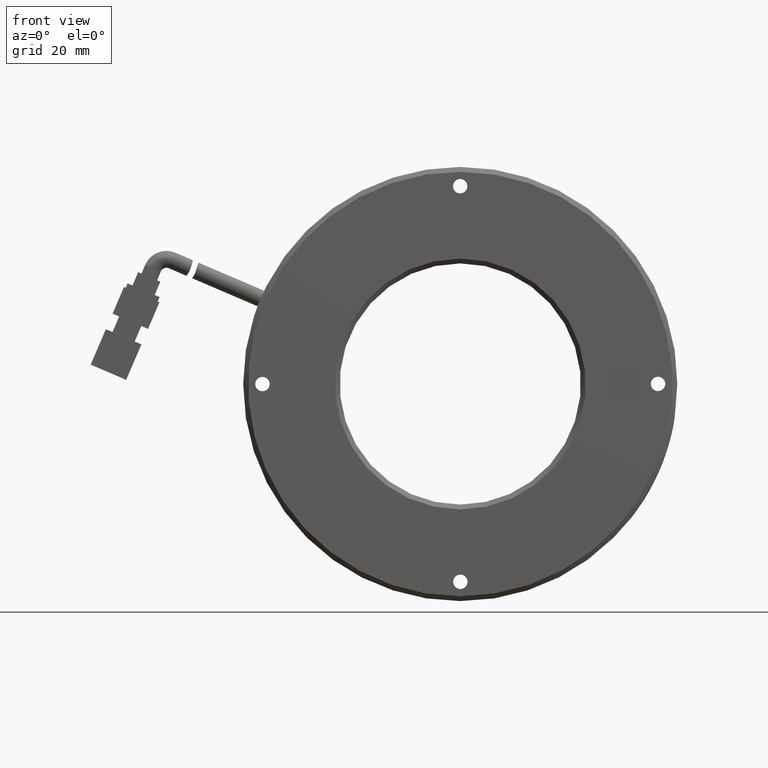
[diagram: clean part render]
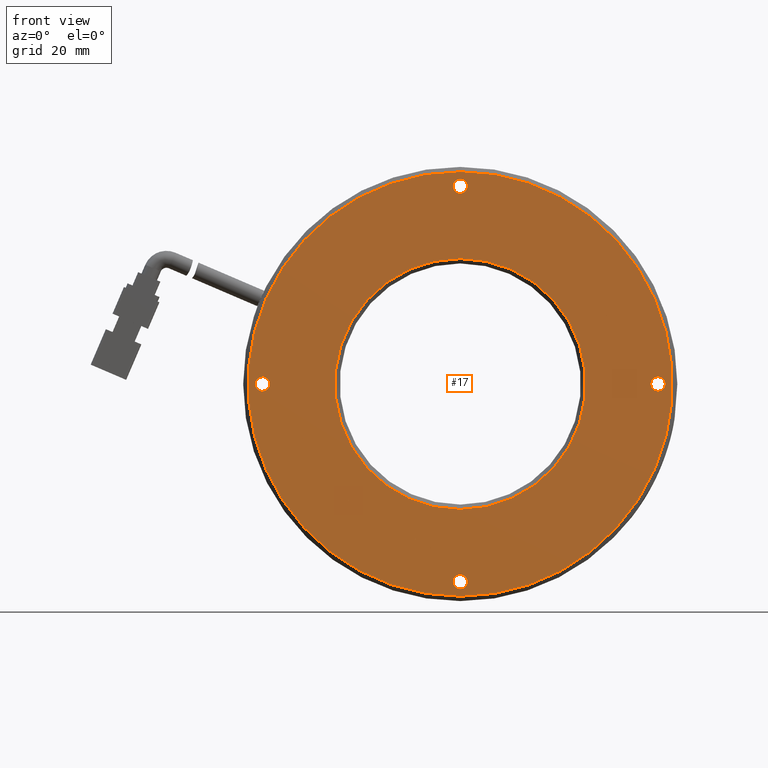
[diagram: same view with one face highlighted and labeled with its STEP entity id]
A machine part, front view. The second image highlights one B-rep face of the part: STEP entity #17.
In plain terms, the highlighted planar face has unit normal (0, 1, 0).
Its self-contained STEP definition (entity closure, byte-faithful):
#17 = ADVANCED_FACE ( 'NONE', ( #29082, #36484, #12332, #28107, #19718, #11350 ), #25307, .F. ) ;
#142 = CARTESIAN_POINT ( 'NONE',  ( -37.42857142857143800, -1.376447876447878900, -1.500000000000422800 ) ) ;
#380 = DIRECTION ( 'NONE',  ( 0.0000000000000000000, 0.0000000000000000000, 1.000000000000000000 ) ) ;
#1617 = EDGE_CURVE ( 'NONE', #20141, #33394, #23441, .T. ) ;
#1720 = EDGE_LOOP ( 'NONE', ( #29910, #34251 ) ) ;
#2146 = CARTESIAN_POINT ( 'NONE',  ( 3.571428571428565800, -1.376447876447878900, -39.50000000000000700 ) ) ;
#2369 = DIRECTION ( 'NONE',  ( 0.0000000000000000000, -1.000000000000000000, 0.0000000000000000000 ) ) ;
#3250 = CIRCLE ( 'NONE', #40471, 1.499999999999992700 ) ;
#4046 = AXIS2_PLACEMENT_3D ( 'NONE', #11362, #33414, #14530 ) ;
#5170 = DIRECTION ( 'NONE',  ( 0.0000000000000000000, 0.0000000000000000000, 1.000000000000000000 ) ) ;
#5369 = AXIS2_PLACEMENT_3D ( 'NONE', #8336, #5866, #5170 ) ;
#5775 = EDGE_CURVE ( 'NONE', #15281, #29503, #7669, .T. ) ;
#5866 = DIRECTION ( 'NONE',  ( -0.0000000000000000000, 1.000000000000000000, 0.0000000000000000000 ) ) ;
#6174 = VERTEX_POINT ( 'NONE', #2146 ) ;
#6738 = EDGE_LOOP ( 'NONE', ( #31327, #10570 ) ) ;
#7104 = AXIS2_PLACEMENT_3D ( 'NONE', #22276, #22150, #22018 ) ;
#7241 = CARTESIAN_POINT ( 'NONE',  ( 44.57142857142857700, -1.376447876447878900, 1.457167719820518000E-013 ) ) ;
#7288 = CIRCLE ( 'NONE', #9019, 44.00000000000000000 ) ;
#7498 = AXIS2_PLACEMENT_3D ( 'NONE', #21226, #2369, #24425 ) ;
#7499 = VERTEX_POINT ( 'NONE', #29788 ) ;
#7669 = CIRCLE ( 'NONE', #38198, 1.499999999999992700 ) ;
#7960 = ORIENTED_EDGE ( 'NONE', *, *, #25396, .F. ) ;
#8296 = AXIS2_PLACEMENT_3D ( 'NONE', #16094, #38141, #19295 ) ;
#8336 = CARTESIAN_POINT ( 'NONE',  ( 3.571428571428565800, -1.376447876447878900, 0.0000000000000000000 ) ) ;
#9019 = AXIS2_PLACEMENT_3D ( 'NONE', #28086, #9224, #31262 ) ;
#9104 = DIRECTION ( 'NONE',  ( 0.0000000000000000000, 0.0000000000000000000, 1.000000000000000000 ) ) ;
#9153 = DIRECTION ( 'NONE',  ( 0.0000000000000000000, -1.000000000000000000, 0.0000000000000000000 ) ) ;
#9183 = EDGE_LOOP ( 'NONE', ( #17519, #7960 ) ) ;
#9224 = DIRECTION ( 'NONE',  ( -0.0000000000000000000, 1.000000000000000000, 0.0000000000000000000 ) ) ;
#9864 = DIRECTION ( 'NONE',  ( 0.0000000000000000000, -1.000000000000000000, 0.0000000000000000000 ) ) ;
#9950 = VERTEX_POINT ( 'NONE', #10733 ) ;
#10393 = DIRECTION ( 'NONE',  ( 0.0000000000000000000, 0.0000000000000000000, 1.000000000000000000 ) ) ;
#10570 = ORIENTED_EDGE ( 'NONE', *, *, #35869, .F. ) ;
#10733 = CARTESIAN_POINT ( 'NONE',  ( 3.571428571428565800, -1.376447876447878900, -42.49999999999999300 ) ) ;
#10871 = CIRCLE ( 'NONE', #8296, 1.499999999999994400 ) ;
#11350 = FACE_BOUND ( 'NONE', #1720, .T. ) ;
#11362 = CARTESIAN_POINT ( 'NONE',  ( 3.571428571428565800, -1.376447876447878900, 0.0000000000000000000 ) ) ;
#11844 = VERTEX_POINT ( 'NONE', #23460 ) ;
#12332 = FACE_BOUND ( 'NONE', #6738, .T. ) ;
#12655 = CARTESIAN_POINT ( 'NONE',  ( 44.57142857142857700, -1.376447876447878900, -1.499999999999848600 ) ) ;
#13339 = DIRECTION ( 'NONE',  ( 0.0000000000000000000, -1.000000000000000000, 0.0000000000000000000 ) ) ;
#13713 = DIRECTION ( 'NONE',  ( 0.0000000000000000000, -1.000000000000000000, 0.0000000000000000000 ) ) ;
#14255 = ORIENTED_EDGE ( 'NONE', *, *, #1617, .F. ) ;
#14444 = AXIS2_PLACEMENT_3D ( 'NONE', #7241, #29259, #10393 ) ;
#14530 = DIRECTION ( 'NONE',  ( 0.0000000000000000000, 0.0000000000000000000, -1.000000000000000000 ) ) ;
#15281 = VERTEX_POINT ( 'NONE', #27857 ) ;
#15805 = EDGE_CURVE ( 'NONE', #33394, #20141, #7288, .T. ) ;
#16094 = CARTESIAN_POINT ( 'NONE',  ( 3.571428571428281200, -1.376447876447878900, 41.00000000000000000 ) ) ;
#16250 = VERTEX_POINT ( 'NONE', #26684 ) ;
#16420 = VERTEX_POINT ( 'NONE', #24353 ) ;
#16452 = AXIS2_PLACEMENT_3D ( 'NONE', #38097, #19244, #380 ) ;
#17512 = CARTESIAN_POINT ( 'NONE',  ( 3.571428571428565800, -1.376447876447878900, 44.00000000000000000 ) ) ;
#17519 = ORIENTED_EDGE ( 'NONE', *, *, #19993, .F. ) ;
#18199 = DIRECTION ( 'NONE',  ( 0.0000000000000000000, -1.000000000000000000, 0.0000000000000000000 ) ) ;
#18317 = EDGE_CURVE ( 'NONE', #16420, #18800, #33495, .T. ) ;
#18800 = VERTEX_POINT ( 'NONE', #29825 ) ;
#19244 = DIRECTION ( 'NONE',  ( 0.0000000000000000000, -1.000000000000000000, 0.0000000000000000000 ) ) ;
#19295 = DIRECTION ( 'NONE',  ( 0.0000000000000000000, 0.0000000000000000000, 1.000000000000000000 ) ) ;
#19718 = FACE_OUTER_BOUND ( 'NONE', #36655, .T. ) ;
#19993 = EDGE_CURVE ( 'NONE', #7499, #23219, #20960, .T. ) ;
#20080 = EDGE_LOOP ( 'NONE', ( #31173, #34048 ) ) ;
#20141 = VERTEX_POINT ( 'NONE', #17512 ) ;
#20960 = CIRCLE ( 'NONE', #14444, 1.499999999999994400 ) ;
#21226 = CARTESIAN_POINT ( 'NONE',  ( 3.571428571428565800, -1.376447876447878900, 0.0000000000000000000 ) ) ;
#22018 = DIRECTION ( 'NONE',  ( 0.0000000000000000000, -0.0000000000000000000, 1.000000000000000000 ) ) ;
#22150 = DIRECTION ( 'NONE',  ( 0.0000000000000000000, 1.000000000000000000, 0.0000000000000000000 ) ) ;
#22276 = CARTESIAN_POINT ( 'NONE',  ( -41.42857142857143100, -1.376447876447878900, 0.0000000000000000000 ) ) ;
#23076 = ORIENTED_EDGE ( 'NONE', *, *, #15805, .F. ) ;
#23219 = VERTEX_POINT ( 'NONE', #12655 ) ;
#23441 = CIRCLE ( 'NONE', #5369, 44.00000000000000000 ) ;
#23460 = CARTESIAN_POINT ( 'NONE',  ( 3.571428571428281200, -1.376447876447878900, 42.49999999999999300 ) ) ;
#24281 = CIRCLE ( 'NONE', #16452, 1.499999999999994400 ) ;
#24353 = CARTESIAN_POINT ( 'NONE',  ( 3.571428571428568500, -1.376447876447878900, 25.99999999999998200 ) ) ;
#24425 = DIRECTION ( 'NONE',  ( 0.0000000000000000000, 0.0000000000000000000, -1.000000000000000000 ) ) ;
#25307 = PLANE ( 'NONE',  #7104 ) ;
#25396 = EDGE_CURVE ( 'NONE', #23219, #7499, #33108, .T. ) ;
#25740 = CIRCLE ( 'NONE', #38291, 1.499999999999994400 ) ;
#25819 = EDGE_LOOP ( 'NONE', ( #36388, #36012 ) ) ;
#26684 = CARTESIAN_POINT ( 'NONE',  ( 3.571428571428281200, -1.376447876447878900, 39.50000000000000700 ) ) ;
#27857 = CARTESIAN_POINT ( 'NONE',  ( -37.42857142857143800, -1.376447876447878900, 1.499999999999562400 ) ) ;
#28086 = CARTESIAN_POINT ( 'NONE',  ( 3.571428571428565800, -1.376447876447878900, 0.0000000000000000000 ) ) ;
#28107 = FACE_BOUND ( 'NONE', #20080, .T. ) ;
#28705 = CARTESIAN_POINT ( 'NONE',  ( 44.57142857142857700, -1.376447876447878900, 1.457167719820518000E-013 ) ) ;
#29082 = FACE_BOUND ( 'NONE', #25819, .T. ) ;
#29259 = DIRECTION ( 'NONE',  ( 0.0000000000000000000, -1.000000000000000000, 0.0000000000000000000 ) ) ;
#29503 = VERTEX_POINT ( 'NONE', #142 ) ;
#29788 = CARTESIAN_POINT ( 'NONE',  ( 44.57142857142857700, -1.376447876447878900, 1.500000000000140100 ) ) ;
#29825 = CARTESIAN_POINT ( 'NONE',  ( 3.571428571428565800, -1.376447876447878900, -25.99999999999998200 ) ) ;
#29910 = ORIENTED_EDGE ( 'NONE', *, *, #33207, .F. ) ;
#31173 = ORIENTED_EDGE ( 'NONE', *, *, #5775, .F. ) ;
#31262 = DIRECTION ( 'NONE',  ( 0.0000000000000000000, 0.0000000000000000000, 1.000000000000000000 ) ) ;
#31327 = ORIENTED_EDGE ( 'NONE', *, *, #37620, .F. ) ;
#31903 = DIRECTION ( 'NONE',  ( 0.0000000000000000000, 0.0000000000000000000, 1.000000000000000000 ) ) ;
#32220 = CARTESIAN_POINT ( 'NONE',  ( -37.42857142857143800, -1.376447876447878900, -4.302114220422481600E-013 ) ) ;
#32508 = EDGE_CURVE ( 'NONE', #6174, #9950, #25740, .T. ) ;
#32582 = CARTESIAN_POINT ( 'NONE',  ( 3.571428571428565800, -1.376447876447878900, -41.00000000000000000 ) ) ;
#32870 = CIRCLE ( 'NONE', #34849, 1.499999999999994400 ) ;
#33108 = CIRCLE ( 'NONE', #35479, 1.499999999999994400 ) ;
#33207 = EDGE_CURVE ( 'NONE', #18800, #16420, #38276, .T. ) ;
#33394 = VERTEX_POINT ( 'NONE', #37715 ) ;
#33414 = DIRECTION ( 'NONE',  ( 0.0000000000000000000, -1.000000000000000000, 0.0000000000000000000 ) ) ;
#33469 = EDGE_CURVE ( 'NONE', #29503, #15281, #3250, .T. ) ;
#33495 = CIRCLE ( 'NONE', #4046, 25.99999999999998200 ) ;
#34048 = ORIENTED_EDGE ( 'NONE', *, *, #33469, .F. ) ;
#34251 = ORIENTED_EDGE ( 'NONE', *, *, #18317, .F. ) ;
#34849 = AXIS2_PLACEMENT_3D ( 'NONE', #37046, #18199, #40202 ) ;
#35378 = DIRECTION ( 'NONE',  ( 0.0000000000000000000, 0.0000000000000000000, 1.000000000000000000 ) ) ;
#35479 = AXIS2_PLACEMENT_3D ( 'NONE', #28705, #9864, #31903 ) ;
#35746 = DIRECTION ( 'NONE',  ( 0.0000000000000000000, 0.0000000000000000000, 1.000000000000000000 ) ) ;
#35869 = EDGE_CURVE ( 'NONE', #16250, #11844, #32870, .T. ) ;
#36012 = ORIENTED_EDGE ( 'NONE', *, *, #38318, .F. ) ;
#36388 = ORIENTED_EDGE ( 'NONE', *, *, #32508, .F. ) ;
#36484 = FACE_BOUND ( 'NONE', #9183, .T. ) ;
#36655 = EDGE_LOOP ( 'NONE', ( #14255, #23076 ) ) ;
#37046 = CARTESIAN_POINT ( 'NONE',  ( 3.571428571428281200, -1.376447876447878900, 41.00000000000000000 ) ) ;
#37620 = EDGE_CURVE ( 'NONE', #11844, #16250, #10871, .T. ) ;
#37710 = CARTESIAN_POINT ( 'NONE',  ( -37.42857142857143800, -1.376447876447878900, -4.302114220422481600E-013 ) ) ;
#37715 = CARTESIAN_POINT ( 'NONE',  ( 3.571428571428570700, -1.376447876447878900, -44.00000000000000000 ) ) ;
#38097 = CARTESIAN_POINT ( 'NONE',  ( 3.571428571428565800, -1.376447876447878900, -41.00000000000000000 ) ) ;
#38141 = DIRECTION ( 'NONE',  ( 0.0000000000000000000, -1.000000000000000000, 0.0000000000000000000 ) ) ;
#38198 = AXIS2_PLACEMENT_3D ( 'NONE', #37710, #9153, #9104 ) ;
#38276 = CIRCLE ( 'NONE', #7498, 25.99999999999998200 ) ;
#38291 = AXIS2_PLACEMENT_3D ( 'NONE', #32582, #13713, #35746 ) ;
#38318 = EDGE_CURVE ( 'NONE', #9950, #6174, #24281, .T. ) ;
#40202 = DIRECTION ( 'NONE',  ( 0.0000000000000000000, 0.0000000000000000000, 1.000000000000000000 ) ) ;
#40471 = AXIS2_PLACEMENT_3D ( 'NONE', #32220, #13339, #35378 ) ;